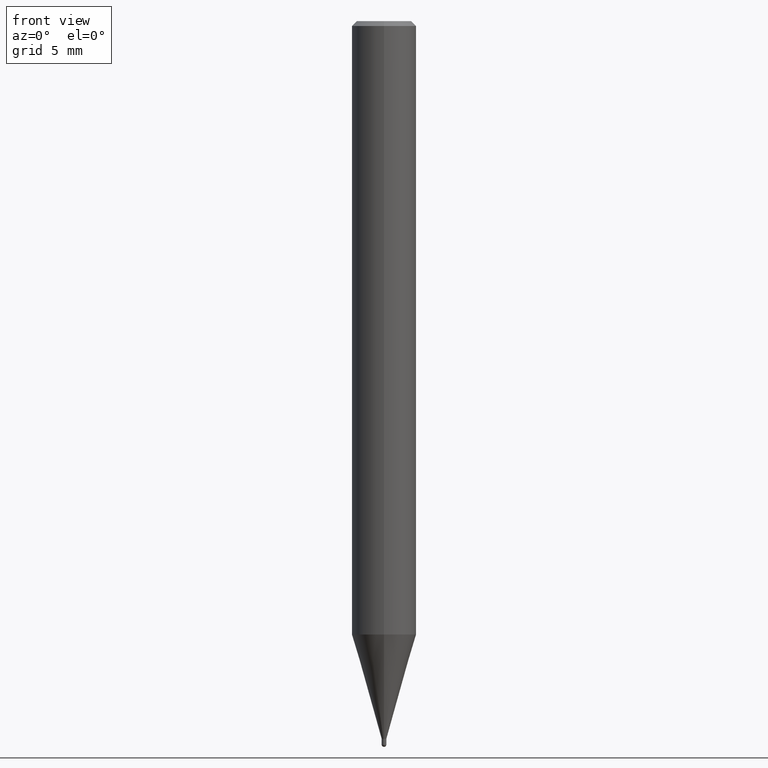
[diagram: clean part render]
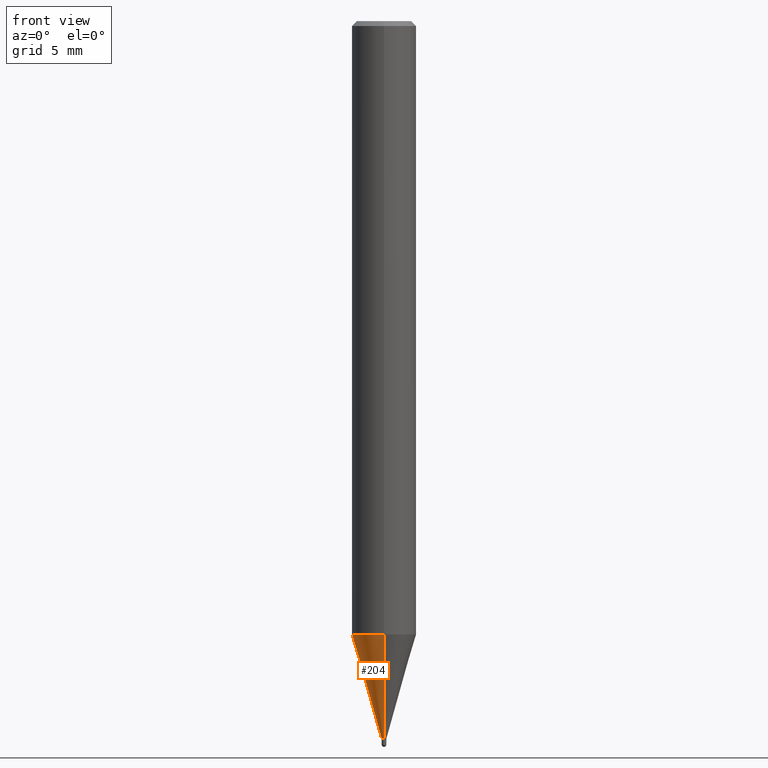
[diagram: same view with one face highlighted and labeled with its STEP entity id]
A machine part, front view. The second image highlights one B-rep face of the part: STEP entity #204.
In plain terms, the highlighted conical surface has half-angle 16 deg.
Its self-contained STEP definition (entity closure, byte-faithful):
#94=VERTEX_POINT('',#235);
#112=VERTEX_POINT('',#254);
#122=EDGE_CURVE('',#166,#112,#266,.T.);
#132=EDGE_CURVE('',#166,#180,#277,.T.);
#146=EDGE_CURVE('',#180,#94,#293,.T.);
#166=VERTEX_POINT('',#315);
#180=VERTEX_POINT('',#333);
#188=EDGE_CURVE('',#94,#112,#342,.T.);
#204=ADVANCED_FACE('',(#361),#362,.T.);
#235=CARTESIAN_POINT('',(0.0,1.99995,-38.031));
#254=CARTESIAN_POINT('',(0.0,0.14495,-44.5));
#266=CIRCLE('',#425,0.14495);
#277=LINE('',#438,#439);
#293=CIRCLE('',#459,1.99995);
#315=CARTESIAN_POINT('',(1.77506690986553E-017,-0.14495,-44.5));
#333=CARTESIAN_POINT('',(2.44915147732706E-016,-1.99995,-38.031));
#342=LINE('',#517,#518);
#361=FACE_OUTER_BOUND('',#541,.T.);
#362=CONICAL_SURFACE('',#542,1.07245,0.279258979430111);
#425=AXIS2_PLACEMENT_3D('',#593,#594,#595);
#438=CARTESIAN_POINT('',(1.31332908415681E-016,-1.07245,-41.2655));
#439=VECTOR('',#605,1.0);
#459=AXIS2_PLACEMENT_3D('',#629,#630,#631);
#517=CARTESIAN_POINT('',(-1.31332908415681E-016,1.07245,-41.2655));
#518=VECTOR('',#697,1.0);
#541=EDGE_LOOP('',(#728,#729,#730,#731));
#542=AXIS2_PLACEMENT_3D('',#732,#733,#734);
#593=CARTESIAN_POINT('',(0.0,0.0,-44.5));
#594=DIRECTION('',(0.0,0.0,-1.0));
#595=DIRECTION('',(0.0,1.0,0.0));
#605=DIRECTION('',(3.37554672384358E-017,-0.275643410905672,0.961259959648943));
#629=CARTESIAN_POINT('',(0.0,0.0,-38.031));
#630=DIRECTION('',(0.0,0.0,-1.0));
#631=DIRECTION('',(0.0,1.0,0.0));
#697=DIRECTION('',(3.37554672384358E-017,-0.275643410905672,-0.961259959648943));
#728=ORIENTED_EDGE('',*,*,#188,.T.);
#729=ORIENTED_EDGE('',*,*,#122,.F.);
#730=ORIENTED_EDGE('',*,*,#132,.T.);
#731=ORIENTED_EDGE('',*,*,#146,.T.);
#732=CARTESIAN_POINT('',(0.0,0.0,-41.2655));
#733=DIRECTION('',(-0.0,-0.0,1.0));
#734=DIRECTION('',(0.0,1.0,0.0));